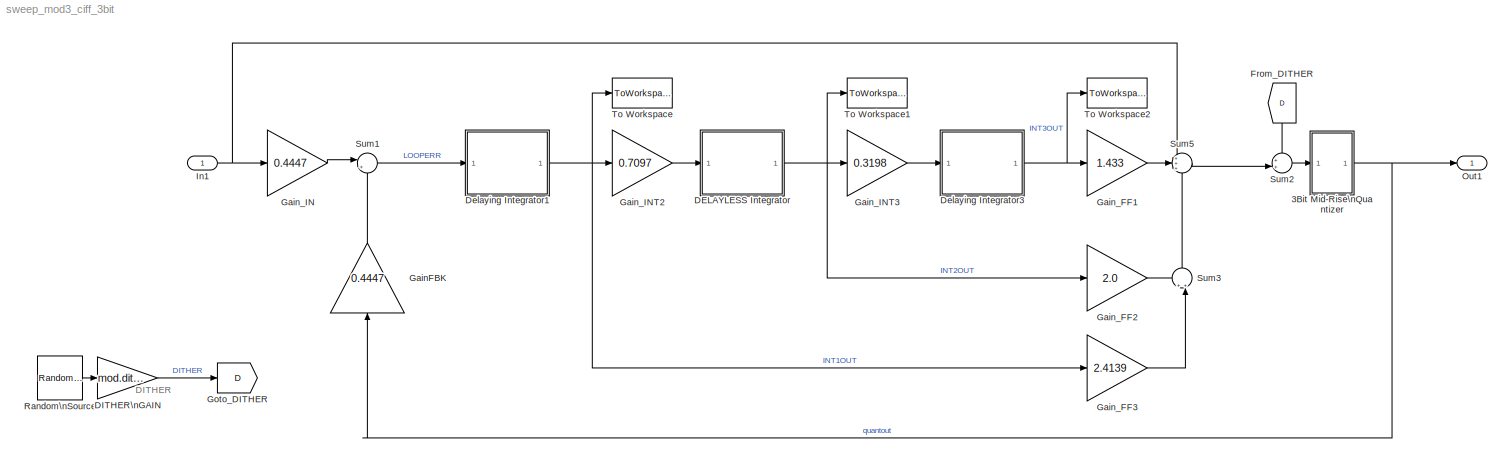
MODEL sweep_mod3_ciff_3bit
KIND model
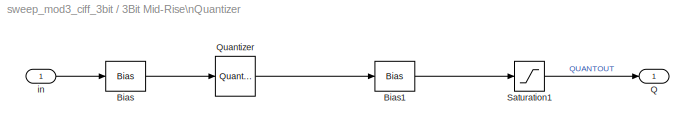
BLOCK [SubSystem] 3Bit Mid-Rise\nQuantizer
  FunctionWithSeparateData = off
  MaskHideContents = off
  MinAlgLoopOccurrences = off
  Opaque = off
  Ports = [1, 1]
  PropExecContextOutsideSubsystem = off
  RTWSystemCode = Auto
  RequestExecContextInheritance = off
  SID = 142
BLOCK [Bias] 3Bit Mid-Rise\nQuantizer/Bias
  AttributesFormatString = Need offset to give\\nMID-RISE quantiser
  Bias = 1/7
  SID = 144
  SaturateOnIntegerOverflow = off
BLOCK [Bias] 3Bit Mid-Rise\nQuantizer/Bias1
  Bias = -1/7
  SID = 145
  SaturateOnIntegerOverflow = off
BLOCK [Outport] 3Bit Mid-Rise\nQuantizer/Q
  IconDisplay = Port number
  SID = 148
BLOCK [Quantizer] 3Bit Mid-Rise\nQuantizer/Quantizer
  LinearizeAsGain = off
  QuantizationInterval = 2/7
  SID = 146
  SampleTime = 1/Fs
BLOCK [Saturate] 3Bit Mid-Rise\nQuantizer/Saturation1
  AttributesFormatString = Limit quantiser\\noutput to +/-1
  InputPortMap = u0
  LowerLimit = -1
  Ports = [1, 1]
  SID = 147
  UpperLimit = 1
BLOCK [Inport] 3Bit Mid-Rise\nQuantizer/in
  IconDisplay = Port number
  SID = 143
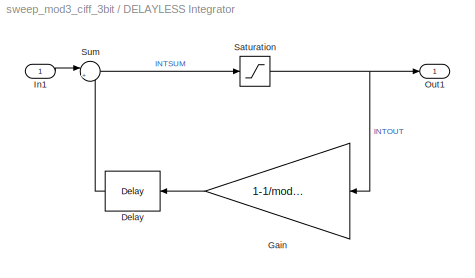
BLOCK [SubSystem] DELAYLESS Integrator
  FunctionWithSeparateData = off
  MaskHideContents = off
  MinAlgLoopOccurrences = off
  Opaque = off
  Ports = [1, 1]
  PropExecContextOutsideSubsystem = off
  RTWSystemCode = Auto
  RequestExecContextInheritance = off
  SID = 78
BLOCK [Reference] DELAYLESS Integrator/Delay  REF=dspsigops/Delay
  InputProcessing = Inherited (this choice will be removed - see release notes)
  Ports = [1, 1]
  SID = 80
  SourceBlock = dspsigops/Delay
  SourceType = Delay
  UserData = DataTag0
  UserDataPersistent = on
  delay = 1
  dif_ic_for_ch = off
  dif_ic_for_dly = off
  dly_unit = Samples
  ic = 0
  ic_detail = off
  reset_popup = None
BLOCK [Gain] DELAYLESS Integrator/Gain
  AttributesFormatString = Integrator leakage
  Gain = 1-1/mod.igain2
  OutDataTypeStr = Inherit: Inherit via internal rule
  ParamDataTypeStr = Inherit: Inherit via internal rule
  SID = 81
  SaturateOnIntegerOverflow = off
BLOCK [Inport] DELAYLESS Integrator/In1
  IconDisplay = Port number
  SID = 79
BLOCK [Outport] DELAYLESS Integrator/Out1
  IconDisplay = Port number
  SID = 84
BLOCK [Saturate] DELAYLESS Integrator/Saturation
  InputPortMap = u0
  LowerLimit = -(mod.isat2)
  Ports = [1, 1]
  SID = 82
  UpperLimit = mod.isat2
BLOCK [Sum] DELAYLESS Integrator/Sum
  AttributesFormatString = Integrator summer
  IconShape = round
  InputSameDT = off
  Inputs = |++
  OutDataTypeStr = Inherit: Inherit via internal rule
  Ports = [2, 1]
  SID = 83
  SaturateOnIntegerOverflow = off
BLOCK [Gain] DITHER\nGAIN
  Gain = mod.dither
  OutDataTypeStr = Inherit: Inherit via internal rule
  ParamDataTypeStr = Inherit: Inherit via internal rule
  SID = 124
  SampleTime = 1/Fs
  SaturateOnIntegerOverflow = off
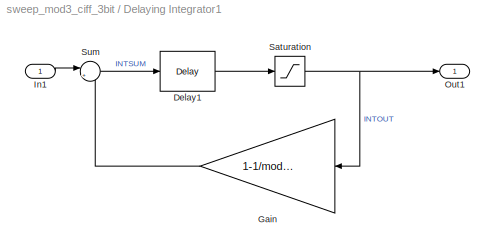
BLOCK [SubSystem] Delaying Integrator1
  FunctionWithSeparateData = off
  MaskHideContents = off
  MinAlgLoopOccurrences = off
  Opaque = off
  Ports = [1, 1]
  PropExecContextOutsideSubsystem = off
  RTWSystemCode = Auto
  RequestExecContextInheritance = off
  SID = 75
BLOCK [Reference] Delaying Integrator1/Delay1  REF=dspsigops/Delay
  InputProcessing = Inherited (this choice will be removed - see release notes)
  Ports = [1, 1]
  SID = 105
  SourceBlock = dspsigops/Delay
  SourceType = Delay
  UserData = DataTag1
  UserDataPersistent = on
  delay = 1
  dif_ic_for_ch = off
  dif_ic_for_dly = off
  dly_unit = Samples
  ic = 0
  ic_detail = off
  reset_popup = None
BLOCK [Gain] Delaying Integrator1/Gain
  AttributesFormatString = Integrator leakage
  Gain = 1-1/mod.igain1
  OutDataTypeStr = Inherit: Inherit via internal rule
  ParamDataTypeStr = Inherit: Inherit via internal rule
  SID = 32
  SaturateOnIntegerOverflow = off
BLOCK [Inport] Delaying Integrator1/In1
  IconDisplay = Port number
  SID = 77
BLOCK [Outport] Delaying Integrator1/Out1
  IconDisplay = Port number
  SID = 76
BLOCK [Saturate] Delaying Integrator1/Saturation
  InputPortMap = u0
  LowerLimit = -(mod.isat1)
  Ports = [1, 1]
  SID = 72
  UpperLimit = mod.isat1
BLOCK [Sum] Delaying Integrator1/Sum
  AttributesFormatString = Integrator summer
  IconShape = round
  InputSameDT = off
  Inputs = |++
  OutDataTypeStr = Inherit: Inherit via internal rule
  Ports = [2, 1]
  SID = 3
  SaturateOnIntegerOverflow = off
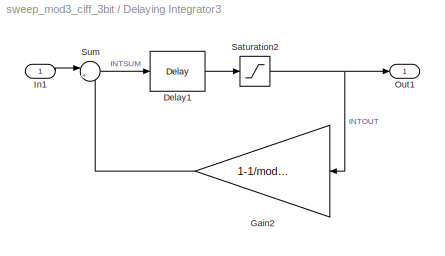
BLOCK [SubSystem] Delaying Integrator3
  FunctionWithSeparateData = off
  MaskHideContents = off
  MinAlgLoopOccurrences = off
  Opaque = off
  Ports = [1, 1]
  PropExecContextOutsideSubsystem = off
  RTWSystemCode = Auto
  RequestExecContextInheritance = off
  SID = 94
BLOCK [Reference] Delaying Integrator3/Delay1  REF=dspsigops/Delay
  InputProcessing = Inherited (this choice will be removed - see release notes)
  Ports = [1, 1]
  SID = 106
  SourceBlock = dspsigops/Delay
  SourceType = Delay
  UserData = DataTag2
  UserDataPersistent = on
  delay = 1
  dif_ic_for_ch = off
  dif_ic_for_dly = off
  dly_unit = Samples
  ic = 0
  ic_detail = off
  reset_popup = None
BLOCK [Gain] Delaying Integrator3/Gain2
  AttributesFormatString = Integrator leakage
  Gain = 1-1/mod.igain3
  OutDataTypeStr = Inherit: Inherit via internal rule
  ParamDataTypeStr = Inherit: Inherit via internal rule
  SID = 97
  SaturateOnIntegerOverflow = off
BLOCK [Inport] Delaying Integrator3/In1
  IconDisplay = Port number
  SID = 95
BLOCK [Outport] Delaying Integrator3/Out1
  IconDisplay = Port number
  SID = 100
BLOCK [Saturate] Delaying Integrator3/Saturation2
  InputPortMap = u0
  LowerLimit = -(mod.isat3)
  Ports = [1, 1]
  SID = 98
  UpperLimit = mod.isat3
BLOCK [Sum] Delaying Integrator3/Sum
  AttributesFormatString = Integrator summer
  IconShape = round
  InputSameDT = off
  Inputs = |++
  OutDataTypeStr = Inherit: Inherit via internal rule
  Ports = [2, 1]
  SID = 99
  SaturateOnIntegerOverflow = off
BLOCK [From] From_DITHER
  GotoTag = D
  SID = 128
BLOCK [Gain] GainFBK
  Gain = 0.4447
  OutDataTypeStr = Inherit: Inherit via internal rule
  ParamDataTypeStr = Inherit: Inherit via internal rule
  SID = 107
  SaturateOnIntegerOverflow = off
BLOCK [Gain] Gain_FF1
  Gain = 1.433
  OutDataTypeStr = Inherit: Inherit via internal rule
  ParamDataTypeStr = Inherit: Inherit via internal rule
  SID = 114
  SaturateOnIntegerOverflow = off
BLOCK [Gain] Gain_FF2
  Gain = 2.0
  OutDataTypeStr = Inherit: Inherit via internal rule
  ParamDataTypeStr = Inherit: Inherit via internal rule
  SID = 115
  SaturateOnIntegerOverflow = off
BLOCK [Gain] Gain_FF3
  Gain = 2.4139
  OutDataTypeStr = Inherit: Inherit via internal rule
  ParamDataTypeStr = Inherit: Inherit via internal rule
  SID = 116
  SaturateOnIntegerOverflow = off
BLOCK [Gain] Gain_IN
  Gain = 0.4447
  OutDataTypeStr = Inherit: Inherit via internal rule
  ParamDataTypeStr = Inherit: Inherit via internal rule
  SID = 109
  SaturateOnIntegerOverflow = off
BLOCK [Gain] Gain_INT2
  Gain = 0.7097
  OutDataTypeStr = Inherit: Inherit via internal rule
  ParamDataTypeStr = Inherit: Inherit via internal rule
  SID = 111
  SaturateOnIntegerOverflow = off
BLOCK [Gain] Gain_INT3
  Gain = 0.3198
  OutDataTypeStr = Inherit: Inherit via internal rule
  ParamDataTypeStr = Inherit: Inherit via internal rule
  SID = 112
  SaturateOnIntegerOverflow = off
BLOCK [Goto] Goto_DITHER
  GotoTag = D
  SID = 125
BLOCK [Inport] In1
  IconDisplay = Port number
  SID = 140
BLOCK [Outport] Out1
  IconDisplay = Port number
  SID = 141
BLOCK [Reference] Random\nSource  REF=dspsrcs4/Random\nSource
  CltLength = 12
  DataType = Double
  IsInherit = off
  MaxVal = 1
  MeanVal = 0
  MinVal = -1
  NormMethod = Ziggurat
  OutComplex = Real
  Ports = [0, 1]
  RepMode = Not repeatable
  SID = 126
  SampFrame = 1
  SampMode = Discrete
  SampTime = 1/Fs
  SourceBlock = dspsrcs4/Random\nSource
  SourceType = Random Source
  SrcType = Uniform
  UserData = DataTag3
  UserDataPersistent = on
  VarVal = 1
  rawSeed = 1
BLOCK [Sum] Sum1
  AttributesFormatString = Modulator input\\nloop servo error (input - fbk)
  IconShape = round
  InputSameDT = off
  Inputs = |+-
  OutDataTypeStr = Inherit: Inherit via internal rule
  Ports = [2, 1]
  SID = 7
  SampleTime = 1/Fs
  SaturateOnIntegerOverflow = off
BLOCK [Sum] Sum2
  IconShape = round
  InputSameDT = off
  Inputs = ++|
  OutDataTypeStr = Inherit: Inherit via internal rule
  Ports = [2, 1]
  SID = 129
  SaturateOnIntegerOverflow = off
BLOCK [Sum] Sum3
  IconShape = round
  InputSameDT = off
  Inputs = ++|
  OutDataTypeStr = Inherit: Inherit via internal rule
  Ports = [2, 1]
  SID = 113
  SaturateOnIntegerOverflow = off
BLOCK [Sum] Sum5
  IconShape = round
  InputSameDT = off
  Inputs = +++
  OutDataTypeStr = Inherit: Inherit via internal rule
  Ports = [3, 1]
  SID = 110
  SampleTime = 1/Fs
  SaturateOnIntegerOverflow = off
BLOCK [ToWorkspace] To Workspace
  MaxDataPoints = inf
  Ports = [1]
  SID = 118
  SampleTime = -1
  VariableName = INT1OUT
BLOCK [ToWorkspace] To Workspace1
  MaxDataPoints = inf
  Ports = [1]
  SID = 119
  SampleTime = -1
  VariableName = INT2OUT
BLOCK [ToWorkspace] To Workspace2
  MaxDataPoints = inf
  Ports = [1]
  SID = 120
  SampleTime = -1
  VariableName = INT3OUT
ANNOTATION (root): DITHER \n\n\n\n\n\n
LINE 3Bit Mid-Rise\nQuantizer/Bias1:1 -> 3Bit Mid-Rise\nQuantizer/Saturation1:1
LINE 3Bit Mid-Rise\nQuantizer/Bias:1 -> 3Bit Mid-Rise\nQuantizer/Quantizer:1
LINE 3Bit Mid-Rise\nQuantizer/Quantizer:1 -> 3Bit Mid-Rise\nQuantizer/Bias1:1
LINE 3Bit Mid-Rise\nQuantizer/Saturation1:1 -> 3Bit Mid-Rise\nQuantizer/Q:1
LINE 3Bit Mid-Rise\nQuantizer/in:1 -> 3Bit Mid-Rise\nQuantizer/Bias:1
NET 3Bit Mid-Rise\nQuantizer:1 -> GainFBK:1, Out1:1
LINE DELAYLESS Integrator/Delay:1 -> DELAYLESS Integrator/Sum:2
LINE DELAYLESS Integrator/Gain:1 -> DELAYLESS Integrator/Delay:1
LINE DELAYLESS Integrator/In1:1 -> DELAYLESS Integrator/Sum:1
NET DELAYLESS Integrator/Saturation:1 -> DELAYLESS Integrator/Gain:1, DELAYLESS Integrator/Out1:1
LINE DELAYLESS Integrator/Sum:1 -> DELAYLESS Integrator/Saturation:1
NET DELAYLESS Integrator:1 -> Gain_FF2:1, Gain_INT3:1, To Workspace1:1
LINE DITHER\nGAIN:1 -> Goto_DITHER:1
LINE Delaying Integrator1/Delay1:1 -> Delaying Integrator1/Saturation:1
LINE Delaying Integrator1/Gain:1 -> Delaying Integrator1/Sum:2
LINE Delaying Integrator1/In1:1 -> Delaying Integrator1/Sum:1
NET Delaying Integrator1/Saturation:1 -> Delaying Integrator1/Gain:1, Delaying Integrator1/Out1:1
LINE Delaying Integrator1/Sum:1 -> Delaying Integrator1/Delay1:1
NET Delaying Integrator1:1 -> Gain_FF3:1, Gain_INT2:1, To Workspace:1
LINE Delaying Integrator3/Delay1:1 -> Delaying Integrator3/Saturation2:1
LINE Delaying Integrator3/Gain2:1 -> Delaying Integrator3/Sum:2
LINE Delaying Integrator3/In1:1 -> Delaying Integrator3/Sum:1
NET Delaying Integrator3/Saturation2:1 -> Delaying Integrator3/Gain2:1, Delaying Integrator3/Out1:1
LINE Delaying Integrator3/Sum:1 -> Delaying Integrator3/Delay1:1
NET Delaying Integrator3:1 -> Gain_FF1:1, To Workspace2:1
LINE From_DITHER:1 -> Sum2:1
LINE GainFBK:1 -> Sum1:2
LINE Gain_FF1:1 -> Sum5:2
LINE Gain_FF2:1 -> Sum3:1
LINE Gain_FF3:1 -> Sum3:2
LINE Gain_IN:1 -> Sum1:1
LINE Gain_INT2:1 -> DELAYLESS Integrator:1
LINE Gain_INT3:1 -> Delaying Integrator3:1
NET In1:1 -> Gain_IN:1, Sum5:1
LINE Random\nSource:1 -> DITHER\nGAIN:1
LINE Sum1:1 -> Delaying Integrator1:1
LINE Sum2:1 -> 3Bit Mid-Rise\nQuantizer:1
LINE Sum3:1 -> Sum5:3
LINE Sum5:1 -> Sum2:2
note: NET lines group one-source signal fan-out (src -> all destinations, sorted); 1:1 wires keep LINE
